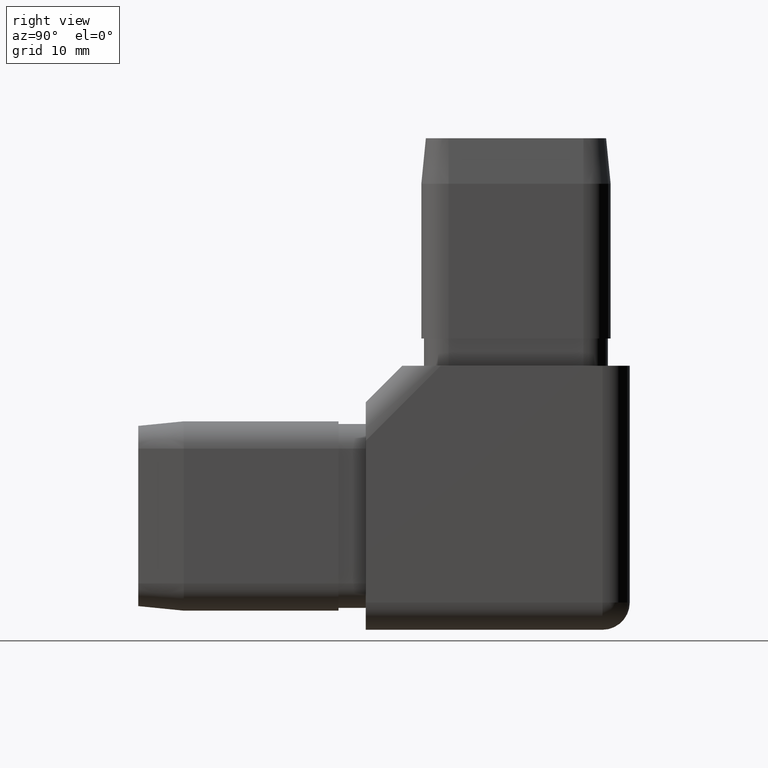
[diagram: clean part render]
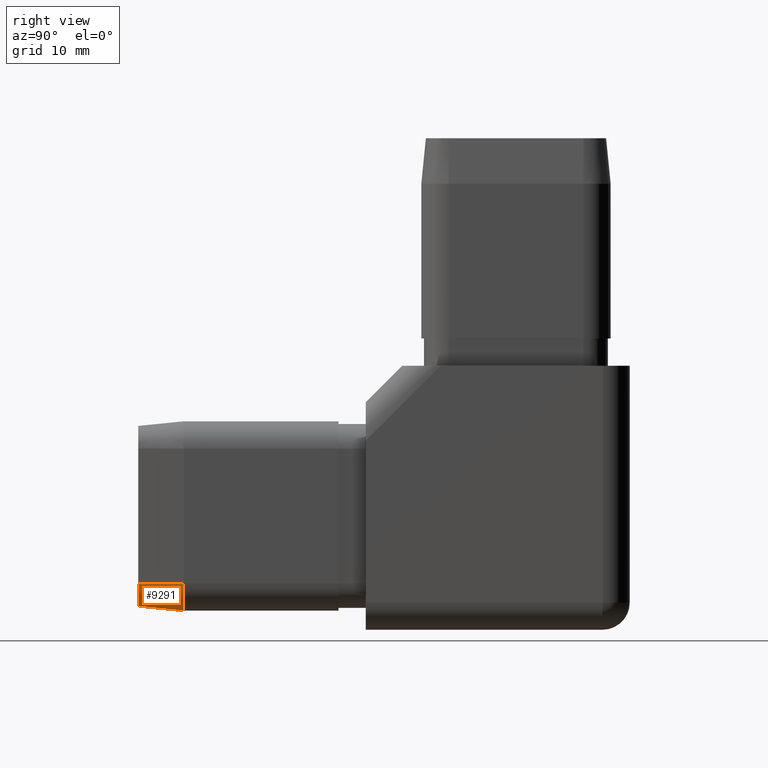
[diagram: same view with one face highlighted and labeled with its STEP entity id]
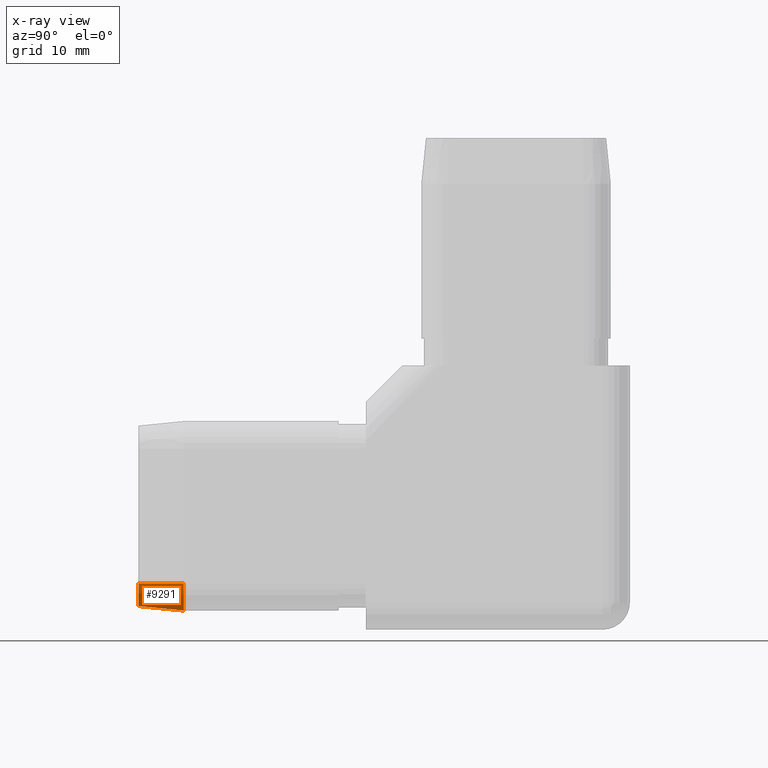
[diagram: x-ray of the same camera — body ghosted, the highlighted face saturated]
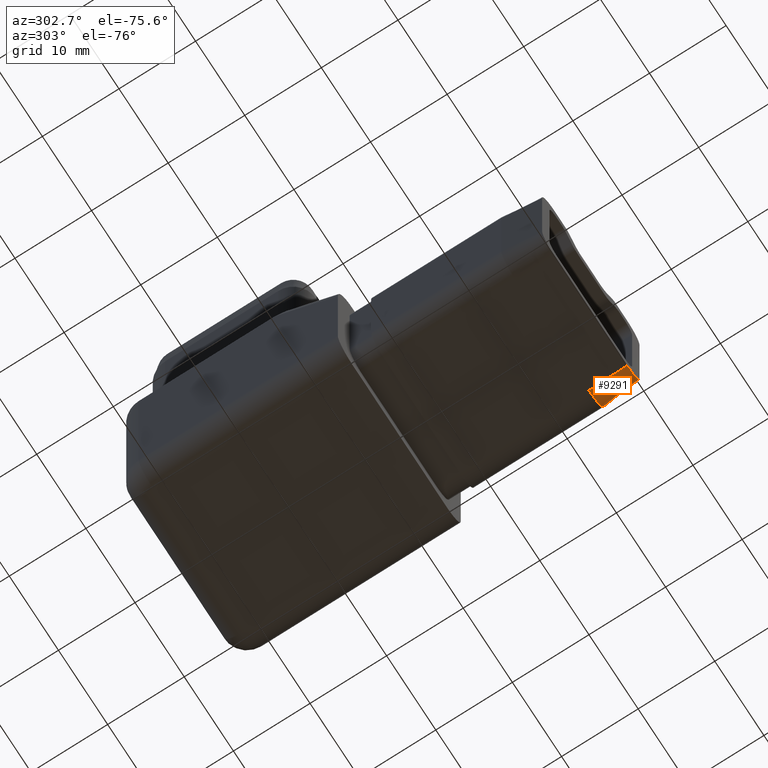
[diagram: same view with one face highlighted and labeled with its STEP entity id]
A machine part, right view. The second image highlights one B-rep face of the part: STEP entity #9291.
The next image is the same camera in x-ray: the body ghosted, the highlighted face saturated — about 0% of this face is hidden behind the body in this view.
A second angle (auxiliary view) of the same face is appended — the face is thin or edge-on in the first view.
In plain terms, the highlighted conical surface has half-angle 5.711 deg.
Its self-contained STEP definition (entity closure, byte-faithful):
#29 = EDGE_CURVE ( 'NONE', #4465, #13299, #17117, .T. ) ;
#149 = LINE ( 'NONE', #23513, #14574 ) ;
#554 = DIRECTION ( 'NONE',  ( -0.0000000000000000000, 1.000000000000000000, 4.440892098500625200E-016 ) ) ;
#1414 = EDGE_CURVE ( 'NONE', #15973, #8210, #149, .T. ) ;
#1631 = CARTESIAN_POINT ( 'NONE',  ( 7.400000000000007500, -39.50000000000000000, -9.400000000000016300 ) ) ;
#2091 = DIRECTION ( 'NONE',  ( 0.09950371902099938700, 0.9950371902099890400, 6.788293377861447500E-016 ) ) ;
#2376 = AXIS2_PLACEMENT_3D ( 'NONE', #10793, #554, #24552 ) ;
#2461 = CARTESIAN_POINT ( 'NONE',  ( 7.400000000000000400, -34.50000000000000000, -12.40000000000001600 ) ) ;
#2912 = CARTESIAN_POINT ( 'NONE',  ( 10.40000000000000900, -34.50000000000000000, -9.400000000000016300 ) ) ;
#2916 = DIRECTION ( 'NONE',  ( 0.0000000000000000000, 0.9950371902099890400, -0.09950371902099894300 ) ) ;
#4382 = EDGE_LOOP ( 'NONE', ( #9524, #12691, #17035, #14006 ) ) ;
#4465 = VERTEX_POINT ( 'NONE', #20092 ) ;
#6607 = EDGE_CURVE ( 'NONE', #13299, #8210, #14687, .T. ) ;
#7921 = FACE_OUTER_BOUND ( 'NONE', #4382, .T. ) ;
#8090 = AXIS2_PLACEMENT_3D ( 'NONE', #1631, #19031, #23081 ) ;
#8210 = VERTEX_POINT ( 'NONE', #2912 ) ;
#8933 = CARTESIAN_POINT ( 'NONE',  ( 7.400000000000000400, -39.50000000000000000, -11.90000000000001600 ) ) ;
#9291 = ADVANCED_FACE ( 'NONE', ( #7921 ), #16256, .T. ) ;
#9524 = ORIENTED_EDGE ( 'NONE', *, *, #29, .T. ) ;
#10018 = VECTOR ( 'NONE', #2916, 1000.000000000000200 ) ;
#10793 = CARTESIAN_POINT ( 'NONE',  ( 7.400000000000007500, -39.50000000000000000, -9.400000000000016300 ) ) ;
#12691 = ORIENTED_EDGE ( 'NONE', *, *, #6607, .T. ) ;
#13299 = VERTEX_POINT ( 'NONE', #2461 ) ;
#13404 = CARTESIAN_POINT ( 'NONE',  ( 9.900000000000009200, -39.50000000000000000, -9.400000000000019900 ) ) ;
#14006 = ORIENTED_EDGE ( 'NONE', *, *, #20482, .F. ) ;
#14389 = CIRCLE ( 'NONE', #8090, 2.500000000000000400 ) ;
#14574 = VECTOR ( 'NONE', #2091, 1000.000000000000200 ) ;
#14687 = CIRCLE ( 'NONE', #15048, 3.000000000000002700 ) ;
#15048 = AXIS2_PLACEMENT_3D ( 'NONE', #18862, #24615, #15064 ) ;
#15064 = DIRECTION ( 'NONE',  ( 0.0000000000000000000, 0.0000000000000000000, -1.000000000000000000 ) ) ;
#15973 = VERTEX_POINT ( 'NONE', #13404 ) ;
#16256 = CONICAL_SURFACE ( 'NONE', #2376, 2.500000000000000400, 0.09966865249116251000 ) ;
#17035 = ORIENTED_EDGE ( 'NONE', *, *, #1414, .F. ) ;
#17117 = LINE ( 'NONE', #8933, #10018 ) ;
#18862 = CARTESIAN_POINT ( 'NONE',  ( 7.400000000000007500, -34.50000000000000000, -9.400000000000014600 ) ) ;
#19031 = DIRECTION ( 'NONE',  ( 0.0000000000000000000, -1.000000000000000000, -4.440892098500625200E-016 ) ) ;
#20092 = CARTESIAN_POINT ( 'NONE',  ( 7.400000000000000400, -39.49999999999999300, -11.90000000000001600 ) ) ;
#20482 = EDGE_CURVE ( 'NONE', #4465, #15973, #14389, .T. ) ;
#23081 = DIRECTION ( 'NONE',  ( 0.0000000000000000000, 0.0000000000000000000, -1.000000000000000000 ) ) ;
#23513 = CARTESIAN_POINT ( 'NONE',  ( 9.900000000000009200, -39.50000000000000000, -9.400000000000019900 ) ) ;
#24552 = DIRECTION ( 'NONE',  ( 0.0000000000000000000, 0.0000000000000000000, 1.000000000000000000 ) ) ;
#24615 = DIRECTION ( 'NONE',  ( 0.0000000000000000000, -1.000000000000000000, -4.440892098500625200E-016 ) ) ;